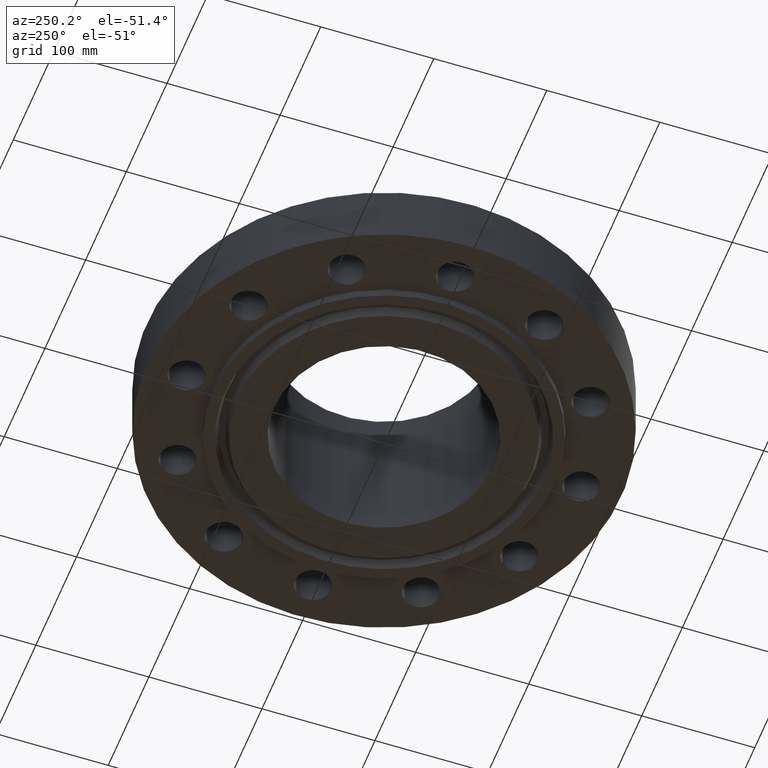
[diagram: clean part render]
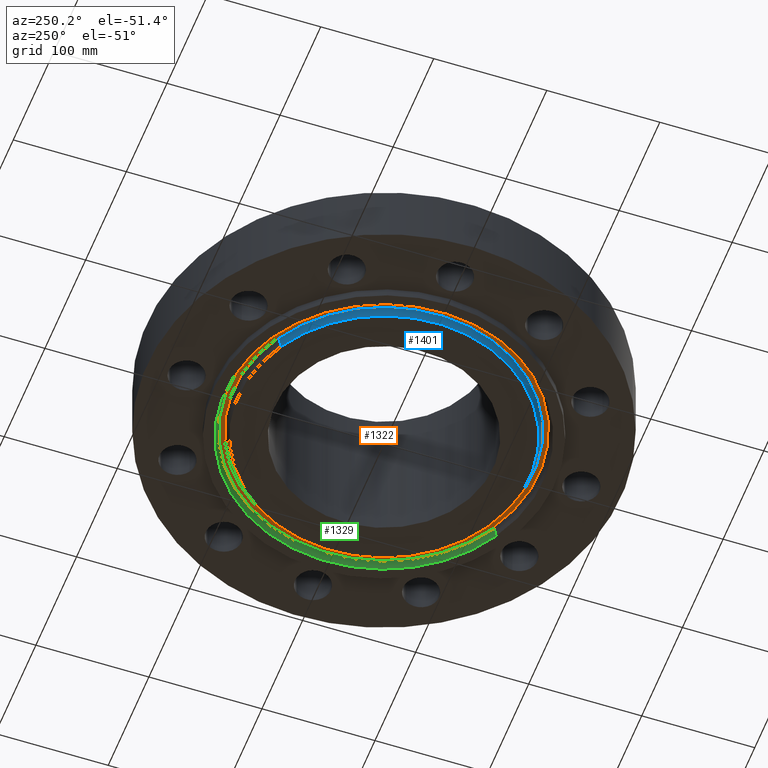
[diagram: same view with three faces highlighted in distinct colors, each labeled with its STEP entity id]
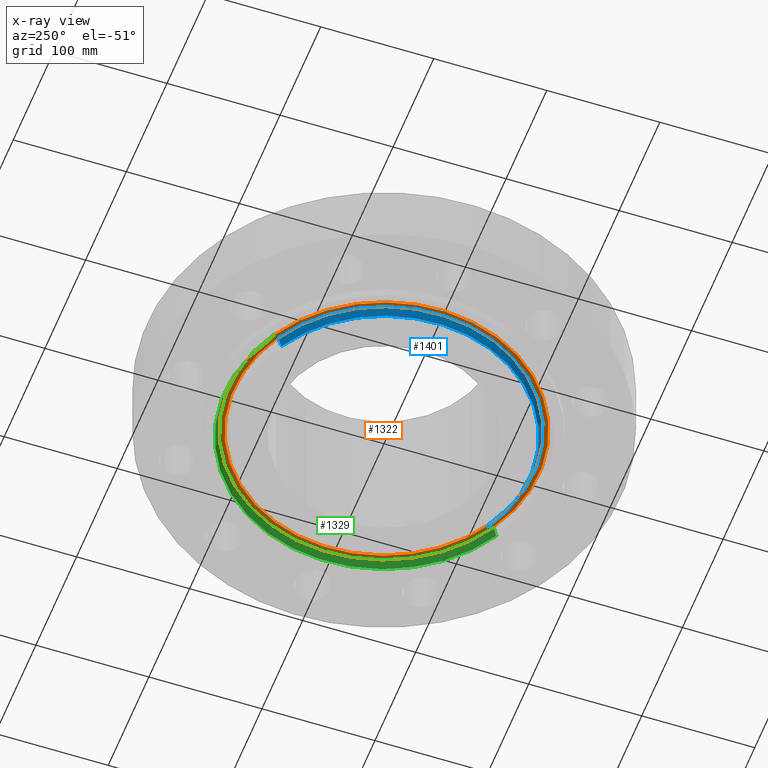
[diagram: x-ray of the same camera — body ghosted, the three highlighted faces saturated]
A machine part, auxiliary view with three faces highlighted in distinct colors.
The next image is the same camera in x-ray (body ghosted, the three faces saturated) — at least one of them is partly hidden behind the body in this view.
Their STEP definitions:

[orange] entity #1322 — the highlighted planar face has unit normal (0, 0, -1).
#484=AXIS2_PLACEMENT_3D('Plane Axis2P3D',#481,#482,#483) ;
#1244=AXIS2_PLACEMENT_3D('Circle Axis2P3D',#1242,#1243,$) ;
#1290=AXIS2_PLACEMENT_3D('Circle Axis2P3D',#1288,#1289,$) ;
#1306=AXIS2_PLACEMENT_3D('Circle Axis2P3D',#1304,#1305,$) ;
#1315=AXIS2_PLACEMENT_3D('Circle Axis2P3D',#1313,#1314,$) ;
#481=CARTESIAN_POINT('Axis2P3D Location',(0.,5.93750000002,0.)) ;
#1239=CARTESIAN_POINT('Vertex',(-2.58583961946,4.73334767375,-3.89015154298E-016)) ;
#1242=CARTESIAN_POINT('Axis2P3D Location',(0.,0.,-3.89015154298E-016)) ;
#1246=CARTESIAN_POINT('Vertex',(2.58583961946,-4.73334767375,-3.89015154298E-016)) ;
#1288=CARTESIAN_POINT('Axis2P3D Location',(0.,0.,-3.89015154298E-016)) ;
#1304=CARTESIAN_POINT('Axis2P3D Location',(0.,0.,0.)) ;
#1308=CARTESIAN_POINT('Vertex',(2.50805672823,-4.59096704638,2.27289753073E-016)) ;
#1310=CARTESIAN_POINT('Vertex',(-2.50805672823,4.59096704638,2.27289753073E-016)) ;
#1313=CARTESIAN_POINT('Axis2P3D Location',(0.,0.,0.)) ;
#482=DIRECTION('Axis2P3D Direction',(0.,0.,-0.0393700787402)) ;
#483=DIRECTION('Axis2P3D XDirection',(0.0393700787402,0.,0.)) ;
#1243=DIRECTION('Axis2P3D Direction',(0.,0.,0.0393700787402)) ;
#1289=DIRECTION('Axis2P3D Direction',(0.,0.,0.0393700787402)) ;
#1305=DIRECTION('Axis2P3D Direction',(0.,0.,-0.0393700787402)) ;
#1314=DIRECTION('Axis2P3D Direction',(0.,0.,-0.0393700787402)) ;
#1301=ORIENTED_EDGE('',*,*,#1248,.F.) ;
#1302=ORIENTED_EDGE('',*,*,#1292,.F.) ;
#1319=ORIENTED_EDGE('',*,*,#1312,.T.) ;
#1320=ORIENTED_EDGE('',*,*,#1317,.T.) ;
#1321=FACE_BOUND('',#1318,.T.) ;
#1322=ADVANCED_FACE('PartBody',(#1303,#1321),#485,.T.) ;
#1245=CIRCLE('generated circle',#1244,5.39362093015) ;
#1291=CIRCLE('generated circle',#1290,5.39362093015) ;
#1307=CIRCLE('generated circle',#1306,5.23137906989) ;
#1316=CIRCLE('generated circle',#1315,5.23137906989) ;
#1248=EDGE_CURVE('',#1240,#1247,#1245,.T.) ;
#1292=EDGE_CURVE('',#1247,#1240,#1291,.T.) ;
#1312=EDGE_CURVE('',#1309,#1311,#1307,.F.) ;
#1317=EDGE_CURVE('',#1311,#1309,#1316,.F.) ;
#1300=EDGE_LOOP('',(#1301,#1302)) ;
#1318=EDGE_LOOP('',(#1319,#1320)) ;
#1303=FACE_OUTER_BOUND('',#1300,.T.) ;
#485=PLANE('',#484) ;
#1240=VERTEX_POINT('',#1239) ;
#1247=VERTEX_POINT('',#1246) ;
#1309=VERTEX_POINT('',#1308) ;
#1311=VERTEX_POINT('',#1310) ;

[blue] entity #1401 — the highlighted conical surface has half-angle 23 deg.
#1209=AXIS2_PLACEMENT_3D('Circle Axis2P3D',#1207,#1208,$) ;
#1363=AXIS2_PLACEMENT_3D('Circle Axis2P3D',#1361,#1362,$) ;
#1376=AXIS2_PLACEMENT_3D('Cone Axis2P3D',#1373,#1374,#1375) ;
#1202=CARTESIAN_POINT('Vertex',(-2.43452288504,4.4563642493,-0.313000000001)) ;
#1204=CARTESIAN_POINT('Vertex',(2.43452288504,-4.4563642493,-0.313000000001)) ;
#1207=CARTESIAN_POINT('Axis2P3D Location',(-1.67844740731E-015,0.,-0.313000000001)) ;
#1339=CARTESIAN_POINT('Vertex',(2.49437600864,-4.56592465714,-0.0188873350169)) ;
#1346=CARTESIAN_POINT('Vertex',(-2.49437600864,4.56592465714,-0.0188873350169)) ;
#1361=CARTESIAN_POINT('Axis2P3D Location',(0.,0.,-0.0188873350169)) ;
#1373=CARTESIAN_POINT('Axis2P3D Location',(0.,0.,-0.373000000001)) ;
#1378=CARTESIAN_POINT('Line Origine',(-2.46444944684,4.51114445322,-0.165943667509)) ;
#1383=CARTESIAN_POINT('Line Origine',(2.46444944684,-4.51114445322,-0.165943667509)) ;
#1208=DIRECTION('Axis2P3D Direction',(0.,0.,-0.0393700787402)) ;
#1362=DIRECTION('Axis2P3D Direction',(0.,0.,0.0393700787402)) ;
#1374=DIRECTION('Axis2P3D Direction',(0.,0.,0.0393700787402)) ;
#1375=DIRECTION('Axis2P3D XDirection',(-0.0188750212049,0.0345504945626,0.)) ;
#1379=DIRECTION('Vector Direction',(-0.00737505833565,0.0134999537303,0.0362403485611)) ;
#1384=DIRECTION('Vector Direction',(0.00737505833565,-0.0134999537303,0.0362403485611)) ;
#1380=VECTOR('Line Direction',#1379,0.0393700787402) ;
#1385=VECTOR('Line Direction',#1384,0.0393700787402) ;
#1396=ORIENTED_EDGE('',*,*,#1387,.F.) ;
#1397=ORIENTED_EDGE('',*,*,#1365,.F.) ;
#1398=ORIENTED_EDGE('',*,*,#1382,.T.) ;
#1399=ORIENTED_EDGE('',*,*,#1211,.F.) ;
#1401=ADVANCED_FACE('PartBody',(#1400),#1377,.T.) ;
#1210=CIRCLE('generated circle',#1209,5.07800000002) ;
#1364=CIRCLE('generated circle',#1363,5.20284341943) ;
#1377=CONICAL_SURFACE('Cone',#1376,5.05253151105,0.401425727959) ;
#1211=EDGE_CURVE('',#1205,#1203,#1210,.T.) ;
#1365=EDGE_CURVE('',#1347,#1340,#1364,.T.) ;
#1382=EDGE_CURVE('',#1347,#1203,#1381,.F.) ;
#1387=EDGE_CURVE('',#1340,#1205,#1386,.F.) ;
#1395=EDGE_LOOP('',(#1396,#1397,#1398,#1399)) ;
#1400=FACE_OUTER_BOUND('',#1395,.T.) ;
#1381=LINE('Line',#1378,#1380) ;
#1386=LINE('Line',#1383,#1385) ;
#1203=VERTEX_POINT('',#1202) ;
#1205=VERTEX_POINT('',#1204) ;
#1340=VERTEX_POINT('',#1339) ;
#1347=VERTEX_POINT('',#1346) ;

[green] entity #1329 — the highlighted conical surface has half-angle 23 deg.
#1190=AXIS2_PLACEMENT_3D('Circle Axis2P3D',#1188,#1189,$) ;
#1264=AXIS2_PLACEMENT_3D('Cone Axis2P3D',#1261,#1262,#1263) ;
#1285=AXIS2_PLACEMENT_3D('Circle Axis2P3D',#1283,#1284,$) ;
#1183=CARTESIAN_POINT('Vertex',(2.65937346265,-4.86795047083,-0.313000000001)) ;
#1185=CARTESIAN_POINT('Vertex',(-2.65937346265,4.86795047083,-0.313000000001)) ;
#1188=CARTESIAN_POINT('Axis2P3D Location',(1.39870617276E-016,5.59482469102E-016,-0.313000000001)) ;
#1230=CARTESIAN_POINT('Vertex',(-2.59952033905,4.75839006298,-0.0188873350169)) ;
#1232=CARTESIAN_POINT('Vertex',(2.59952033905,-4.75839006298,-0.0188873350169)) ;
#1261=CARTESIAN_POINT('Axis2P3D Location',(0.,0.,-0.0188873350169)) ;
#1266=CARTESIAN_POINT('Line Origine',(-2.62944690085,4.8131702669,-0.165943667509)) ;
#1271=CARTESIAN_POINT('Line Origine',(2.62944690085,-4.8131702669,-0.165943667509)) ;
#1283=CARTESIAN_POINT('Axis2P3D Location',(0.,0.,-0.0188873350169)) ;
#1189=DIRECTION('Axis2P3D Direction',(0.,0.,-0.0393700787402)) ;
#1262=DIRECTION('Axis2P3D Direction',(-0.,-0.,-0.0393700787402)) ;
#1263=DIRECTION('Axis2P3D XDirection',(-0.0188750212049,0.0345504945626,0.)) ;
#1267=DIRECTION('Vector Direction',(-0.00737505833565,0.0134999537303,-0.0362403485611)) ;
#1272=DIRECTION('Vector Direction',(0.00737505833565,-0.0134999537303,-0.0362403485611)) ;
#1284=DIRECTION('Axis2P3D Direction',(0.,0.,0.0393700787402)) ;
#1268=VECTOR('Line Direction',#1267,0.0393700787402) ;
#1273=VECTOR('Line Direction',#1272,0.0393700787402) ;
#1324=ORIENTED_EDGE('',*,*,#1192,.T.) ;
#1325=ORIENTED_EDGE('',*,*,#1275,.T.) ;
#1326=ORIENTED_EDGE('',*,*,#1287,.T.) ;
#1327=ORIENTED_EDGE('',*,*,#1270,.F.) ;
#1329=ADVANCED_FACE('PartBody',(#1328),#1265,.F.) ;
#1191=CIRCLE('generated circle',#1190,5.54700000002) ;
#1286=CIRCLE('generated circle',#1285,5.42215658061) ;
#1265=CONICAL_SURFACE('Cone',#1264,5.42215658061,0.401425727959) ;
#1192=EDGE_CURVE('',#1186,#1184,#1191,.T.) ;
#1270=EDGE_CURVE('',#1186,#1231,#1269,.F.) ;
#1275=EDGE_CURVE('',#1184,#1233,#1274,.F.) ;
#1287=EDGE_CURVE('',#1233,#1231,#1286,.T.) ;
#1323=EDGE_LOOP('',(#1324,#1325,#1326,#1327)) ;
#1328=FACE_OUTER_BOUND('',#1323,.T.) ;
#1269=LINE('Line',#1266,#1268) ;
#1274=LINE('Line',#1271,#1273) ;
#1184=VERTEX_POINT('',#1183) ;
#1186=VERTEX_POINT('',#1185) ;
#1231=VERTEX_POINT('',#1230) ;
#1233=VERTEX_POINT('',#1232) ;